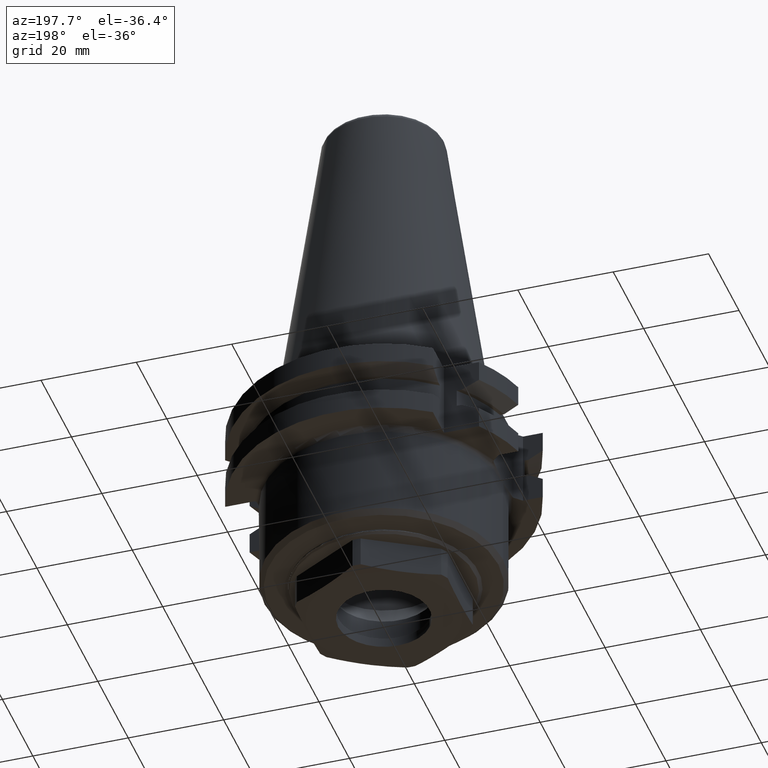
[diagram: clean part render]
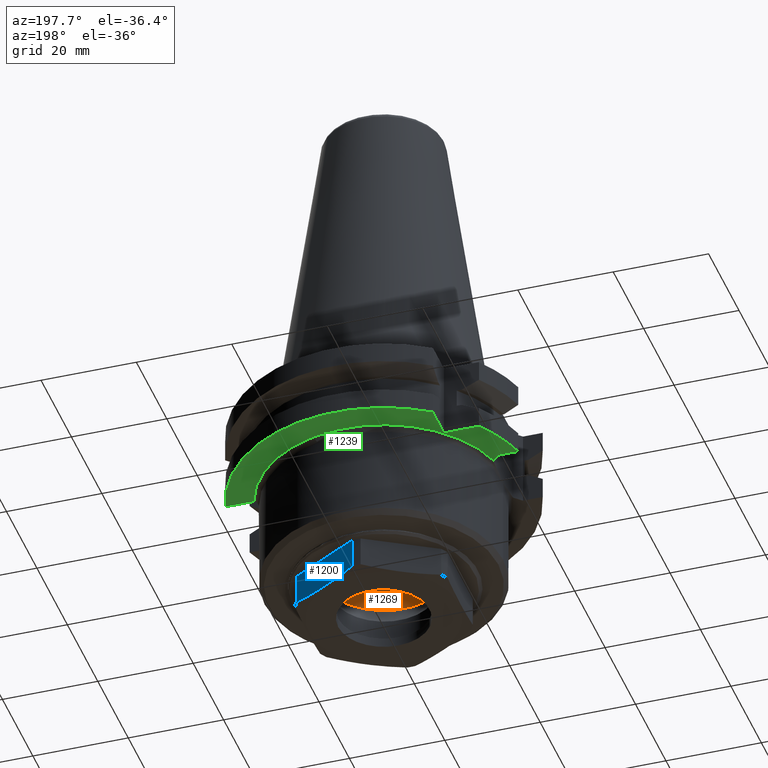
[diagram: same view with three faces highlighted in distinct colors, each labeled with its STEP entity id]
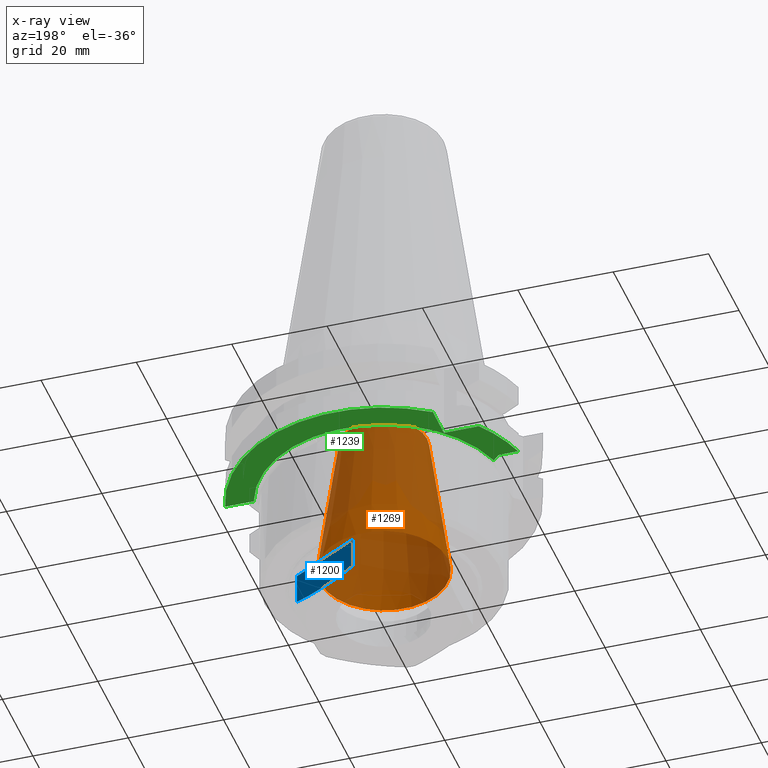
[diagram: x-ray of the same camera — body ghosted, the three highlighted faces saturated]
A machine part, auxiliary view with three faces highlighted in distinct colors.
The next image is the same camera in x-ray (body ghosted, the three faces saturated) — at least one of them is partly hidden behind the body in this view.
Their STEP definitions:

[orange] entity #1269 — the highlighted conical surface has half-angle 8 deg.
#260=CONICAL_SURFACE('',#1412,13.3687425511841,0.139626340159546);
#617=ORIENTED_EDGE('',*,*,#794,.T.);
#618=ORIENTED_EDGE('',*,*,#797,.F.);
#794=EDGE_CURVE('',#918,#918,#977,.T.);
#797=EDGE_CURVE('',#921,#921,#980,.T.);
#918=VERTEX_POINT('',#2538);
#921=VERTEX_POINT('',#2548);
#977=CIRCLE('',#1404,9.05);
#980=CIRCLE('',#1411,13.3687425511841);
#1070=EDGE_LOOP('',(#617));
#1071=EDGE_LOOP('',(#618));
#1161=FACE_BOUND('',#1070,.T.);
#1162=FACE_BOUND('',#1071,.T.);
#1269=ADVANCED_FACE('',(#1161,#1162),#260,.F.);
#1404=AXIS2_PLACEMENT_3D('',#2537,#1737,#1738);
#1411=AXIS2_PLACEMENT_3D('',#2547,#1751,#1752);
#1412=AXIS2_PLACEMENT_3D('',#2549,#1753,#1754);
#1737=DIRECTION('',(0.,0.,1.));
#1738=DIRECTION('',(1.,0.,0.));
#1751=DIRECTION('',(0.,0.,1.));
#1752=DIRECTION('',(1.,0.,0.));
#1753=DIRECTION('',(0.,0.,-1.));
#1754=DIRECTION('',(-1.,0.,0.));
#2537=CARTESIAN_POINT('',(0.,0.,-5.48612543739066));
#2538=CARTESIAN_POINT('',(9.05,0.,-5.48612543739066));
#2547=CARTESIAN_POINT('',(0.,0.,-36.2155754248584));
#2548=CARTESIAN_POINT('',(13.3687425511841,0.,-36.2155754248584));
#2549=CARTESIAN_POINT('',(0.,0.,-36.2155754248584));

[blue] entity #1200 — the highlighted planar face has unit normal (0.5, 0.866, -0).
#53=LINE('',#1819,#133);
#54=LINE('',#1821,#134);
#55=LINE('',#1823,#135);
#133=VECTOR('',#1444,1000.);
#134=VECTOR('',#1447,1000.);
#135=VECTOR('',#1448,1000.);
#215=B_SPLINE_CURVE_WITH_KNOTS('',3,(#1803,#1804,#1805,#1806,#1807),
 .UNSPECIFIED.,.F.,.F.,(4,1,4),(1.62915234571185E-6,0.00824784040358101,
0.0164940516548163),.UNSPECIFIED.);
#284=ORIENTED_EDGE('',*,*,#638,.T.);
#285=ORIENTED_EDGE('',*,*,#631,.T.);
#286=ORIENTED_EDGE('',*,*,#637,.T.);
#287=ORIENTED_EDGE('',*,*,#639,.F.);
#631=EDGE_CURVE('',#811,#810,#215,.T.);
#637=EDGE_CURVE('',#810,#814,#53,.F.);
#638=EDGE_CURVE('',#815,#811,#54,.T.);
#639=EDGE_CURVE('',#815,#814,#55,.T.);
#810=VERTEX_POINT('',#1802);
#811=VERTEX_POINT('',#1808);
#814=VERTEX_POINT('',#1818);
#815=VERTEX_POINT('',#1822);
#987=EDGE_LOOP('',(#284,#285,#286,#287));
#1078=FACE_BOUND('',#987,.T.);
#1165=PLANE('',#1296);
#1200=ADVANCED_FACE('',(#1078),#1165,.T.);
#1296=AXIS2_PLACEMENT_3D('',#1820,#1445,#1446);
#1444=DIRECTION('',(1.30712758802749E-16,-2.25609179163978E-16,-1.));
#1445=DIRECTION('',(0.500000000000002,0.866025403784437,-3.54109647250262E-16));
#1446=DIRECTION('',(-0.866025403784437,0.500000000000003,-2.82565066377482E-16));
#1447=DIRECTION('',(1.30712758802749E-16,-2.25609179163978E-16,-1.));
#1448=DIRECTION('',(-0.866025403784437,0.500000000000003,-2.82565066377482E-16));
#1802=CARTESIAN_POINT('',(0.858571571457223,17.9795120861687,-47.4));
#1803=CARTESIAN_POINT('',(15.1414284285429,9.73330083493332,-47.4));
#1804=CARTESIAN_POINT('',(12.7609522856952,11.1076693768059,-47.7374175015799));
#1805=CARTESIAN_POINT('',(8.00000000000004,13.856406460551,-48.1343792681446));
#1806=CARTESIAN_POINT('',(3.23904771430482,16.6051435442961,-47.7374175015799));
#1807=CARTESIAN_POINT('',(0.858571571457214,17.9795120861687,-47.4));
#1808=CARTESIAN_POINT('',(15.1414284285429,9.73330083493333,-47.4));
#1818=CARTESIAN_POINT('',(0.858571571457224,17.9795120861687,-41.));
#1819=CARTESIAN_POINT('',(0.858571571457231,17.9795120861687,-49.));
#1820=CARTESIAN_POINT('',(-4.2289820894681E-15,18.4752086140681,19.6585793214144));
#1821=CARTESIAN_POINT('',(15.1414284285429,9.73330083493333,-49.));
#1822=CARTESIAN_POINT('',(15.1414284285429,9.73330083493333,-41.));
#1823=CARTESIAN_POINT('',(16.2272413359522,9.10640646055095,-41.));

[green] entity #1239 — the highlighted planar face has unit normal (0, 0, -1).
#97=LINE('',#2439,#177);
#98=LINE('',#2440,#178);
#99=LINE('',#2442,#179);
#100=LINE('',#2443,#180);
#101=LINE('',#2445,#181);
#177=VECTOR('',#1634,1000.);
#178=VECTOR('',#1635,1000.);
#179=VECTOR('',#1636,1000.);
#180=VECTOR('',#1637,1000.);
#181=VECTOR('',#1638,1000.);
#455=ORIENTED_EDGE('',*,*,#750,.T.);
#456=ORIENTED_EDGE('',*,*,#727,.T.);
#457=ORIENTED_EDGE('',*,*,#751,.T.);
#458=ORIENTED_EDGE('',*,*,#752,.T.);
#459=ORIENTED_EDGE('',*,*,#748,.T.);
#460=ORIENTED_EDGE('',*,*,#753,.F.);
#461=ORIENTED_EDGE('',*,*,#754,.F.);
#462=ORIENTED_EDGE('',*,*,#687,.T.);
#687=EDGE_CURVE('',#845,#846,#945,.T.);
#727=EDGE_CURVE('',#878,#876,#958,.F.);
#748=EDGE_CURVE('',#892,#891,#966,.T.);
#750=EDGE_CURVE('',#846,#878,#97,.T.);
#751=EDGE_CURVE('',#876,#893,#98,.T.);
#752=EDGE_CURVE('',#893,#892,#99,.T.);
#753=EDGE_CURVE('',#894,#891,#100,.T.);
#754=EDGE_CURVE('',#845,#894,#101,.T.);
#845=VERTEX_POINT('',#2249);
#846=VERTEX_POINT('',#2251);
#876=VERTEX_POINT('',#2374);
#878=VERTEX_POINT('',#2377);
#891=VERTEX_POINT('',#2434);
#892=VERTEX_POINT('',#2436);
#893=VERTEX_POINT('',#2441);
#894=VERTEX_POINT('',#2444);
#945=CIRCLE('',#1329,31.775);
#958=CIRCLE('',#1353,26.);
#966=CIRCLE('',#1367,31.775);
#1029=EDGE_LOOP('',(#455,#456,#457,#458,#459,#460,#461,#462));
#1120=FACE_BOUND('',#1029,.T.);
#1178=PLANE('',#1368);
#1239=ADVANCED_FACE('',(#1120),#1178,.T.);
#1329=AXIS2_PLACEMENT_3D('',#2252,#1533,#1534);
#1353=AXIS2_PLACEMENT_3D('',#2376,#1594,#1595);
#1367=AXIS2_PLACEMENT_3D('',#2435,#1629,#1630);
#1368=AXIS2_PLACEMENT_3D('',#2438,#1632,#1633);
#1533=DIRECTION('',(0.,0.,-1.));
#1534=DIRECTION('',(-1.,0.,0.));
#1594=DIRECTION('',(0.,0.,-1.));
#1595=DIRECTION('',(-1.,0.,0.));
#1629=DIRECTION('',(0.,0.,-1.));
#1630=DIRECTION('',(-1.,0.,0.));
#1632=DIRECTION('',(0.,0.,-1.));
#1633=DIRECTION('',(-1.,0.,0.));
#1634=DIRECTION('',(-1.,1.91417762866407E-15,0.));
#1635=DIRECTION('',(-0.707106781186548,0.707106781186547,0.));
#1636=DIRECTION('',(-1.,-2.51235813762158E-15,0.));
#1637=DIRECTION('',(-1.,-1.92822466770596E-16,0.));
#1638=DIRECTION('',(0.,-1.,0.));
#2249=CARTESIAN_POINT('',(-18.5,25.8340981069593,-19.1));
#2251=CARTESIAN_POINT('',(30.7383819515602,8.04999999999997,-19.1));
#2252=CARTESIAN_POINT('',(0.,0.,-19.1));
#2374=CARTESIAN_POINT('',(-25.1487007342333,6.59870073423333,-19.1));
#2376=CARTESIAN_POINT('',(0.,0.,-19.1));
#2377=CARTESIAN_POINT('',(24.7224088632156,8.04999999999999,-19.1));
#2434=CARTESIAN_POINT('',(-25.8340981069593,18.5,-19.1));
#2435=CARTESIAN_POINT('',(0.,0.,-19.1));
#2436=CARTESIAN_POINT('',(-30.7383819515602,8.04999999999999,-19.1));
#2438=CARTESIAN_POINT('',(-31.775,0.,-19.1));
#2439=CARTESIAN_POINT('',(-31.775,8.05000000000009,-19.1));
#2440=CARTESIAN_POINT('',(-25.1625,6.6125,-19.1));
#2441=CARTESIAN_POINT('',(-26.6,8.05,-19.1));
#2442=CARTESIAN_POINT('',(-31.775,8.04999999999999,-19.1));
#2443=CARTESIAN_POINT('',(-31.775,18.5,-19.1));
#2444=CARTESIAN_POINT('',(-18.5,18.5,-19.1));
#2445=CARTESIAN_POINT('',(-18.5,0.,-19.1));